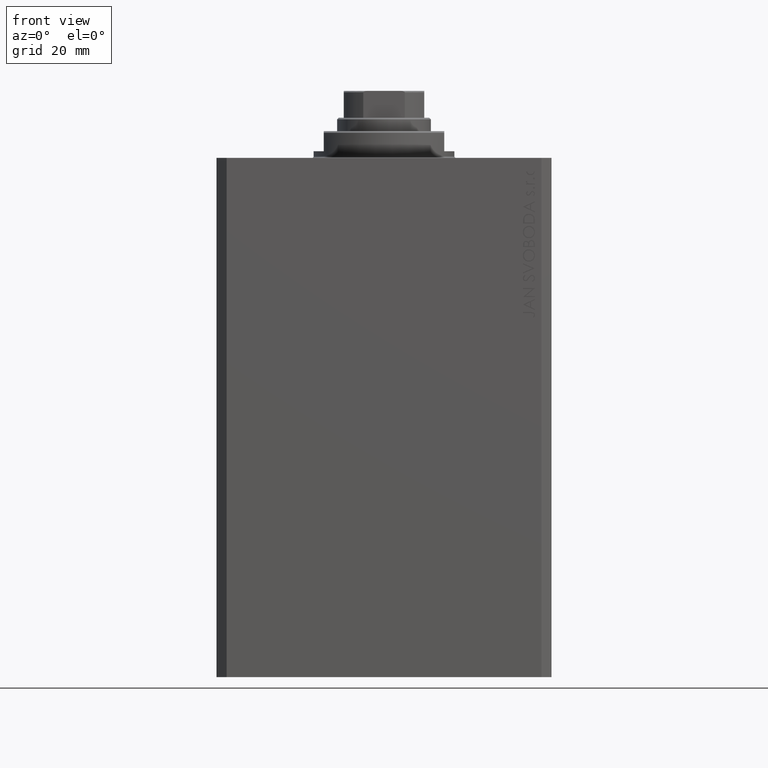
[diagram: clean part render]
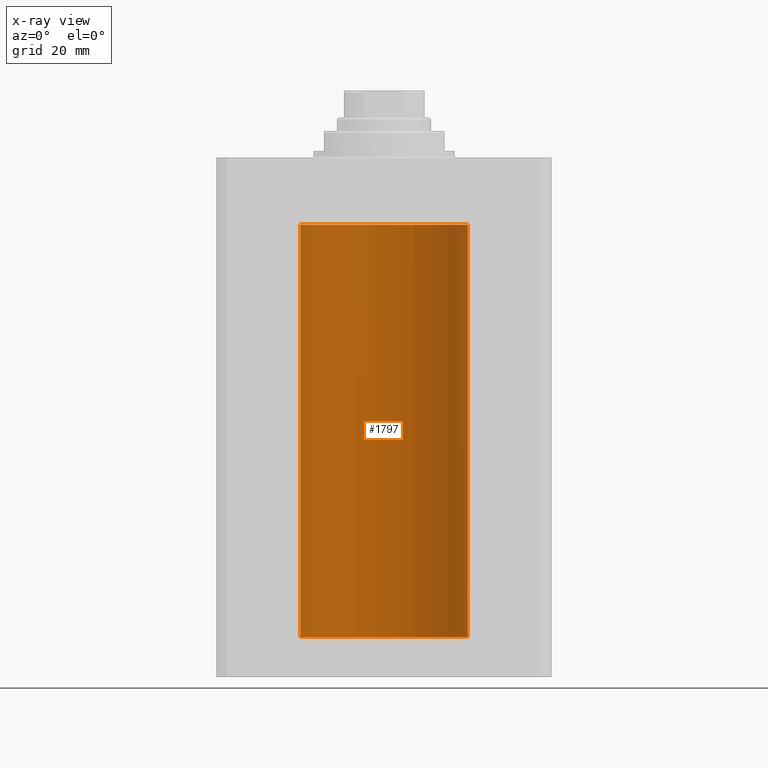
[diagram: x-ray — body ghosted, one internal face saturated and labeled with its STEP entity id]
A machine part, front view, then the same camera in x-ray: the body is ghosted and one INTERNAL B-rep face — a face not visible from any outside direction — is saturated and labeled: STEP entity #1797.
In plain terms, the highlighted cylindrical surface (partial cylindrical patch) has radius 25 mm, axis along (0, 0, 1).
Its self-contained STEP definition (entity closure, byte-faithful):
#1797 = ADVANCED_FACE ( 'NONE', ( #9338 ), #16737, .F. ) ;
#1979 = CARTESIAN_POINT ( 'NONE',  ( -24.96524308704138662, 1.321128302361972873, -26.50733385850702817 ) ) ;
#1997 = CARTESIAN_POINT ( 'NONE',  ( 24.93982559358190443, 1.735040297787693753, -128.9967028623315173 ) ) ;
#2352 = LINE ( 'NONE', #16670, #23938 ) ;
#2523 = CARTESIAN_POINT ( 'NONE',  ( -24.91987913663314558, 1.999905953907249456, -24.73827023896789967 ) ) ;
#2671 = CARTESIAN_POINT ( 'NONE',  ( 24.96516502151962413, 1.322522485723478081, -131.5059723511098184 ) ) ;
#2882 = CARTESIAN_POINT ( 'NONE',  ( 24.91987158875419794, 2.000000000000375255, -130.0000000000000000 ) ) ;
#3066 = CARTESIAN_POINT ( 'NONE',  ( -25.00000000000000000, 3.061616997868383043E-15, -143.0999999999999943 ) ) ;
#3282 = CARTESIAN_POINT ( 'NONE',  ( 24.91987158875419794, 2.000000000000375255, -130.0000000000000000 ) ) ;
#3383 = CARTESIAN_POINT ( 'NONE',  ( 24.91987158875419794, 2.000000000000375255, -130.0000000000000000 ) ) ;
#3616 = CARTESIAN_POINT ( 'NONE',  ( 24.91987158875419439, 2.000000000000376144, -130.2610752061100357 ) ) ;
#4389 = ORIENTED_EDGE ( 'NONE', *, *, #12459, .F. ) ;
#4714 = LINE ( 'NONE', #19022, #30011 ) ;
#5042 = EDGE_LOOP ( 'NONE', ( #4389, #41219, #45663, #12896, #9979, #7323, #26351, #46410, #16779 ) ) ;
#5572 = CARTESIAN_POINT ( 'NONE',  ( 25.00000000000000000, 0.1305261351234901501, -128.0000000000000000 ) ) ;
#6628 = CARTESIAN_POINT ( 'NONE',  ( 25.00000000000000000, 0.000000000000000000, -20.00000000000000355 ) ) ;
#6902 = AXIS2_PLACEMENT_3D ( 'NONE', #42295, #31302, #24156 ) ;
#7323 = ORIENTED_EDGE ( 'NONE', *, *, #28148, .T. ) ;
#9137 = CARTESIAN_POINT ( 'NONE',  ( 24.97045842037802998, 1.219816859706702727, -128.4097138165729746 ) ) ;
#9338 = FACE_OUTER_BOUND ( 'NONE', #5042, .T. ) ;
#9376 = CARTESIAN_POINT ( 'NONE',  ( 24.99894413130755311, 0.2631018416927570769, -128.0130784248878797 ) ) ;
#9680 = CARTESIAN_POINT ( 'NONE',  ( -24.96517827869064021, 1.322271947215002852, -23.49381014772490417 ) ) ;
#9690 = DIRECTION ( 'NONE',  ( 1.000000000000000000, 0.000000000000000000, 0.000000000000000000 ) ) ;
#9909 = CARTESIAN_POINT ( 'NONE',  ( -24.93531696180024682, 1.797913585505315215, -25.88582454002299826 ) ) ;
#9979 = ORIENTED_EDGE ( 'NONE', *, *, #21226, .T. ) ;
#10094 = DIRECTION ( 'NONE',  ( -0.000000000000000000, -0.000000000000000000, 1.000000000000000000 ) ) ;
#10384 = CARTESIAN_POINT ( 'NONE',  ( -24.98014837415680489, 1.002010110534174547, -23.26418383162123149 ) ) ;
#10530 = CARTESIAN_POINT ( 'NONE',  ( 25.00000000000000355, 0.1322318523520167322, -132.0000000000000568 ) ) ;
#11828 = CIRCLE ( 'NONE', #17168, 25.00000000000000000 ) ;
#12459 = EDGE_CURVE ( 'NONE', #39729, #40605, #4714, .T. ) ;
#12896 = ORIENTED_EDGE ( 'NONE', *, *, #14456, .T. ) ;
#13175 = CARTESIAN_POINT ( 'NONE',  ( -24.99492963589240091, 0.5195477780157325975, -26.93575766978349151 ) ) ;
#13262 = CARTESIAN_POINT ( 'NONE',  ( -24.97048098995609422, 1.219391728175664324, -23.40935049578022031 ) ) ;
#13413 = CARTESIAN_POINT ( 'NONE',  ( -24.95466269969938011, 1.507830206157726893, -26.32056178261444046 ) ) ;
#13708 = VERTEX_POINT ( 'NONE', #16687 ) ;
#14386 = VERTEX_POINT ( 'NONE', #2882 ) ;
#14456 = EDGE_CURVE ( 'NONE', #38067, #14386, #38249, .T. ) ;
#14465 = DIRECTION ( 'NONE',  ( -0.000000000000000000, -0.000000000000000000, 1.000000000000000000 ) ) ;
#14928 = VECTOR ( 'NONE', #10094, 1000.000000000000000 ) ;
#16472 = VERTEX_POINT ( 'NONE', #6628 ) ;
#16547 = CARTESIAN_POINT ( 'NONE',  ( 25.00000000000000000, -1.072061970195355044E-23, -128.0000000000000000 ) ) ;
#16670 = CARTESIAN_POINT ( 'NONE',  ( 25.00000000000000000, 0.000000000000000000, -143.0999999999999943 ) ) ;
#16687 = CARTESIAN_POINT ( 'NONE',  ( -25.00000000000000000, -9.880247245846597702E-15, -23.00000000000000000 ) ) ;
#16737 = CYLINDRICAL_SURFACE ( 'NONE', #6902, 25.00000000000000000 ) ;
#16779 = ORIENTED_EDGE ( 'NONE', *, *, #35349, .T. ) ;
#16990 = CARTESIAN_POINT ( 'NONE',  ( -25.00000000000001066, 0.1305561315491718666, -27.00000000000000711 ) ) ;
#17074 = CARTESIAN_POINT ( 'NONE',  ( -24.91986783040116649, 2.000046828840892577, -25.12978542103931545 ) ) ;
#17168 = AXIS2_PLACEMENT_3D ( 'NONE', #31640, #46435, #39750 ) ;
#17779 = CARTESIAN_POINT ( 'NONE',  ( -24.99895219182537787, 0.2621830013652935443, -23.01297886590101172 ) ) ;
#17830 = CARTESIAN_POINT ( 'NONE',  ( 24.91987158875419084, 2.000000000000375255, -129.8695223675034924 ) ) ;
#18166 = CARTESIAN_POINT ( 'NONE',  ( 24.93900639076504433, 1.748128916801911181, -131.0059564568424832 ) ) ;
#18502 = CARTESIAN_POINT ( 'NONE',  ( 25.00000000000000000, 0.000000000000000000, -143.0999999999999943 ) ) ;
#19022 = CARTESIAN_POINT ( 'NONE',  ( -25.00000000000000000, 3.061616997868383043E-15, -143.0999999999999943 ) ) ;
#19655 = CARTESIAN_POINT ( 'NONE',  ( 24.94947734723935540, 1.590234439578162018, -128.7801129525318800 ) ) ;
#20100 = B_SPLINE_CURVE_WITH_KNOTS ( 'NONE', 3,
 ( #3282, #17830, #29468, #45900, #31112, #31576, #1997, #19655, #41628, #38502, #9137, #27060, #42331, #27997, #38266, #9376, #5572, #16547 ),
 .UNSPECIFIED., .F., .F.,
 ( 4, 2, 2, 2, 2, 2, 2, 2, 4 ),
 ( 0.003128423524421374349, 0.003519296810509135818, 0.003910170096596897286, 0.004301043382684659189, 0.004691916668772420224, 0.005082789954860182126, 0.005473663240947944028, 0.005864536527035705063, 0.006255409813123466965 ),
 .UNSPECIFIED. ) ;
#20112 = CARTESIAN_POINT ( 'NONE',  ( -24.94946096189906015, 1.590491165172939647, -26.21955560407613461 ) ) ;
#20138 = AXIS2_PLACEMENT_3D ( 'NONE', #28073, #30712, #9690 ) ;
#20660 = CARTESIAN_POINT ( 'NONE',  ( -24.98454822070441850, 0.8871466876120172040, -23.20273613247366384 ) ) ;
#21041 = CARTESIAN_POINT ( 'NONE',  ( 24.98014008684977938, 1.002218476749562326, -131.7356982428405843 ) ) ;
#21226 = EDGE_CURVE ( 'NONE', #14386, #25717, #20100, .T. ) ;
#21719 = CARTESIAN_POINT ( 'NONE',  ( 25.00000000000000000, -1.072061970195355044E-23, -128.0000000000000000 ) ) ;
#21763 = CARTESIAN_POINT ( 'NONE',  ( 24.97046928552371270, 1.219632852334580075, -131.5904672177837256 ) ) ;
#23938 = VECTOR ( 'NONE', #35292, 1000.000000000000000 ) ;
#24156 = DIRECTION ( 'NONE',  ( 1.000000000000000000, 0.000000000000000000, 0.000000000000000000 ) ) ;
#24253 = CARTESIAN_POINT ( 'NONE',  ( -24.94950203352433604, 1.598895442473012851, -23.77053781758364792 ) ) ;
#24392 = CARTESIAN_POINT ( 'NONE',  ( 24.98454161695537579, 0.8873356620646051240, -131.7971726743457452 ) ) ;
#24480 = CARTESIAN_POINT ( 'NONE',  ( -24.93902394873053296, 1.747880816115506164, -23.99362802520557025 ) ) ;
#24627 = CARTESIAN_POINT ( 'NONE',  ( 24.99196954445030627, 0.6450912151121425131, -131.8976436764501443 ) ) ;
#24868 = CARTESIAN_POINT ( 'NONE',  ( 24.94948532700468036, 1.599156973340005949, -131.2291341524913832 ) ) ;
#25455 = LINE ( 'NONE', #39780, #32709 ) ;
#25717 = VERTEX_POINT ( 'NONE', #21719 ) ;
#26351 = ORIENTED_EDGE ( 'NONE', *, *, #29388, .T. ) ;
#27043 = CARTESIAN_POINT ( 'NONE',  ( -24.99894363691344168, 0.2631623743596695486, -26.98691550260398841 ) ) ;
#27060 = CARTESIAN_POINT ( 'NONE',  ( 24.98009620012517829, 1.003265033550147622, -128.2649430588943176 ) ) ;
#27084 = VERTEX_POINT ( 'NONE', #35225 ) ;
#27440 = CARTESIAN_POINT ( 'NONE',  ( -25.00000000000000000, 3.061616987151861079E-15, -26.99999999999999645 ) ) ;
#27508 = CARTESIAN_POINT ( 'NONE',  ( -24.99199174798888023, 0.6442364453337716679, -26.89793475977048232 ) ) ;
#27744 = CARTESIAN_POINT ( 'NONE',  ( -24.98456984035221851, 0.8865449913022026562, -26.79756360895472156 ) ) ;
#27997 = CARTESIAN_POINT ( 'NONE',  ( 24.99199530066697861, 0.6440939830361807061, -128.1020190641096121 ) ) ;
#28061 = CARTESIAN_POINT ( 'NONE',  ( -24.92494360443313894, 1.935934657392621272, -25.51890776192067278 ) ) ;
#28073 = CARTESIAN_POINT ( 'NONE',  ( 0.000000000000000000, 0.000000000000000000, -20.00000000000000355 ) ) ;
#28148 = EDGE_CURVE ( 'NONE', #25717, #16472, #2352, .T. ) ;
#28536 = CARTESIAN_POINT ( 'NONE',  ( -25.00000000000000000, -9.880247245846597702E-15, -23.00000000000000000 ) ) ;
#29388 = EDGE_CURVE ( 'NONE', #16472, #27084, #41488, .T. ) ;
#29468 = CARTESIAN_POINT ( 'NONE',  ( 24.92092960952686909, 1.986938806757485132, -129.7369911891059076 ) ) ;
#30011 = VECTOR ( 'NONE', #37402, 1000.000000000000000 ) ;
#30415 = VERTEX_POINT ( 'NONE', #18502 ) ;
#30712 = DIRECTION ( 'NONE',  ( 0.000000000000000000, 0.000000000000000000, 1.000000000000000000 ) ) ;
#31112 = CARTESIAN_POINT ( 'NONE',  ( 24.92790171662583987, 1.897957730269075993, -129.3558509857567174 ) ) ;
#31160 = EDGE_CURVE ( 'NONE', #30415, #39729, #11828, .T. ) ;
#31302 = DIRECTION ( 'NONE',  ( -0.000000000000000000, -0.000000000000000000, 1.000000000000000000 ) ) ;
#31576 = CARTESIAN_POINT ( 'NONE',  ( 24.93533359819880957, 1.797683477752172410, -129.1137124550939461 ) ) ;
#31640 = CARTESIAN_POINT ( 'NONE',  ( 0.000000000000000000, 0.000000000000000000, -143.0999999999999943 ) ) ;
#31644 = CARTESIAN_POINT ( 'NONE',  ( -24.92092244115666944, 1.987028274514494930, -25.26234881237649432 ) ) ;
#31788 = CARTESIAN_POINT ( 'NONE',  ( 24.99496001540386203, 0.5180074392840654518, -131.9361479946135205 ) ) ;
#32264 = CARTESIAN_POINT ( 'NONE',  ( 25.00000000000000000, -5.091947734879877638E-15, -132.0000000000000000 ) ) ;
#32709 = VECTOR ( 'NONE', #14465, 1000.000000000000000 ) ;
#32939 = EDGE_CURVE ( 'NONE', #13708, #27084, #42808, .T. ) ;
#33589 = B_SPLINE_CURVE_WITH_KNOTS ( 'NONE', 3,
 ( #28536, #39519, #17779, #45973, #43100, #20660, #10384, #13262, #9680, #24253, #24480, #35228, #2523, #17074, #31644, #28061, #42625, #9909, #38486, #20112, #13413, #1979, #34207, #45658, #27744, #27508, #13175, #27043, #16990, #38014 ),
 .UNSPECIFIED., .F., .F.,
 ( 4, 2, 2, 2, 2, 2, 2, 2, 2, 2, 2, 2, 2, 2, 4 ),
 ( 1.711460648662030874E-19, 0.0003909631133201684925, 0.0007819262266403368767, 0.001172889339960505152, 0.001563852453280673536, 0.002345778679921010305, 0.003127704906561347507, 0.003518668019881516108, 0.003909631133201684275, 0.004300594246521852876, 0.004691557359842020609, 0.005082520473162189210, 0.005473483586482357811, 0.005864446699802525545, 0.006255409813122695013 ),
 .UNSPECIFIED. ) ;
#34207 = CARTESIAN_POINT ( 'NONE',  ( -24.97044682385318026, 1.220055540032808805, -26.59010549084178265 ) ) ;
#35225 = CARTESIAN_POINT ( 'NONE',  ( -25.00000000000000000, 3.061616997868383043E-15, -20.00000000000000355 ) ) ;
#35228 = CARTESIAN_POINT ( 'NONE',  ( -24.92424086025528496, 1.947362422016076788, -24.47497476601984090 ) ) ;
#35292 = DIRECTION ( 'NONE',  ( -0.000000000000000000, -0.000000000000000000, 1.000000000000000000 ) ) ;
#35349 = EDGE_CURVE ( 'NONE', #13708, #40605, #33589, .T. ) ;
#36080 = CARTESIAN_POINT ( 'NONE',  ( 24.99895171050671294, 0.2622427397369146429, -131.9870152263268324 ) ) ;
#36312 = CARTESIAN_POINT ( 'NONE',  ( 24.92422785753205972, 1.947526681255378866, -130.5244453533215960 ) ) ;
#37402 = DIRECTION ( 'NONE',  ( -0.000000000000000000, -0.000000000000000000, 1.000000000000000000 ) ) ;
#38014 = CARTESIAN_POINT ( 'NONE',  ( -25.00000000000000000, 3.061616987151861079E-15, -26.99999999999999645 ) ) ;
#38067 = VERTEX_POINT ( 'NONE', #38306 ) ;
#38249 = B_SPLINE_CURVE_WITH_KNOTS ( 'NONE', 3,
 ( #32264, #10530, #36080, #31788, #24627, #24392, #21041, #21763, #2671, #24868, #18166, #36312, #3616, #3383 ),
 .UNSPECIFIED., .F., .F.,
 ( 4, 2, 2, 2, 2, 2, 4 ),
 ( 4.948121741372981372E-18, 0.0003910529405526613853, 0.0007821058811053178917, 0.001173158821657974398, 0.001564211762210630796, 0.002346317643316002573, 0.003128423524421374349 ),
 .UNSPECIFIED. ) ;
#38266 = CARTESIAN_POINT ( 'NONE',  ( 24.99493190796008690, 0.5194315891213184821, -128.0642131447468159 ) ) ;
#38306 = CARTESIAN_POINT ( 'NONE',  ( 25.00000000000000000, -5.091947734879877638E-15, -132.0000000000000000 ) ) ;
#38486 = CARTESIAN_POINT ( 'NONE',  ( -24.93980871060585258, 1.735282661184229358, -26.00288189918856219 ) ) ;
#38502 = CARTESIAN_POINT ( 'NONE',  ( 24.96525661602875701, 1.320872503675255993, -128.4924442850773971 ) ) ;
#39519 = CARTESIAN_POINT ( 'NONE',  ( -25.00000000000000000, 0.1322014778934262891, -23.00000000000000355 ) ) ;
#39709 = CARTESIAN_POINT ( 'NONE',  ( -25.00000000000000000, 3.061616997868383043E-15, -143.0999999999999943 ) ) ;
#39729 = VERTEX_POINT ( 'NONE', #3066 ) ;
#39750 = DIRECTION ( 'NONE',  ( 1.000000000000000000, 0.000000000000000000, 0.000000000000000000 ) ) ;
#39780 = CARTESIAN_POINT ( 'NONE',  ( 25.00000000000000000, 0.000000000000000000, -143.0999999999999943 ) ) ;
#40605 = VERTEX_POINT ( 'NONE', #27440 ) ;
#41219 = ORIENTED_EDGE ( 'NONE', *, *, #31160, .F. ) ;
#41488 = CIRCLE ( 'NONE', #20138, 25.00000000000000000 ) ;
#41628 = CARTESIAN_POINT ( 'NONE',  ( 24.95467834240024274, 1.507571193169175316, -128.6791451623710145 ) ) ;
#42295 = CARTESIAN_POINT ( 'NONE',  ( 0.000000000000000000, 0.000000000000000000, -143.0999999999999943 ) ) ;
#42331 = CARTESIAN_POINT ( 'NONE',  ( 24.98457651818866054, 0.8863534138924967776, -128.2023442160224249 ) ) ;
#42625 = CARTESIAN_POINT ( 'NONE',  ( -24.92788761901291750, 1.898142276082072089, -25.64361034516351978 ) ) ;
#42808 = LINE ( 'NONE', #39709, #14928 ) ;
#43100 = CARTESIAN_POINT ( 'NONE',  ( -24.99197317726958545, 0.6449463114735953795, -23.10230905830972858 ) ) ;
#45658 = CARTESIAN_POINT ( 'NONE',  ( -24.98008786170526108, 1.003474227436682797, -26.73493817401089956 ) ) ;
#45663 = ORIENTED_EDGE ( 'NONE', *, *, #46000, .T. ) ;
#45900 = CARTESIAN_POINT ( 'NONE',  ( 24.92495585240438061, 1.935777409849492203, -129.4805144122084073 ) ) ;
#45973 = CARTESIAN_POINT ( 'NONE',  ( -24.99496228453478608, 0.5178909248663671194, -23.06382286360416956 ) ) ;
#46000 = EDGE_CURVE ( 'NONE', #30415, #38067, #25455, .T. ) ;
#46410 = ORIENTED_EDGE ( 'NONE', *, *, #32939, .F. ) ;
#46435 = DIRECTION ( 'NONE',  ( 0.000000000000000000, 0.000000000000000000, 1.000000000000000000 ) ) ;